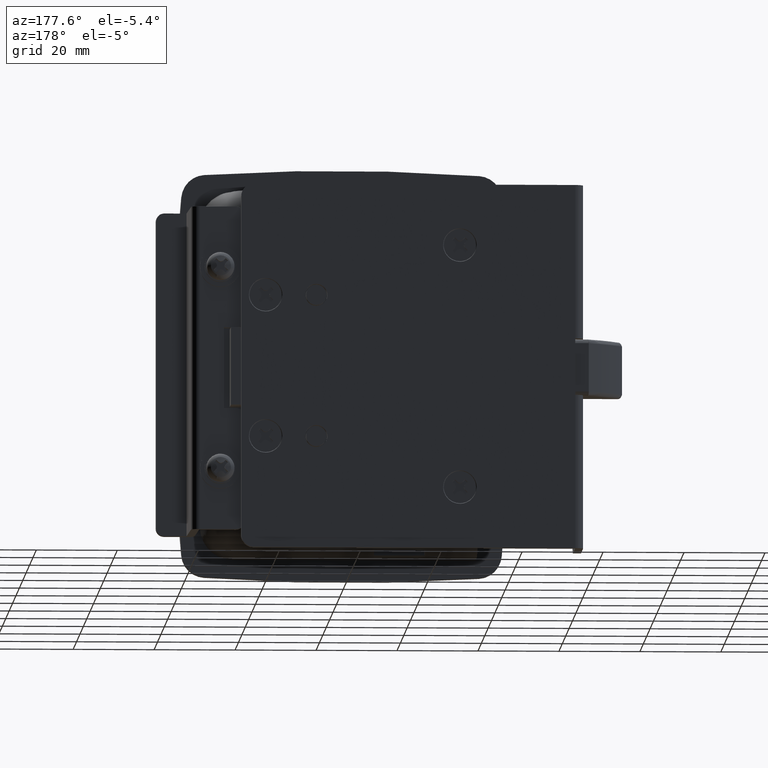
[diagram: clean part render]
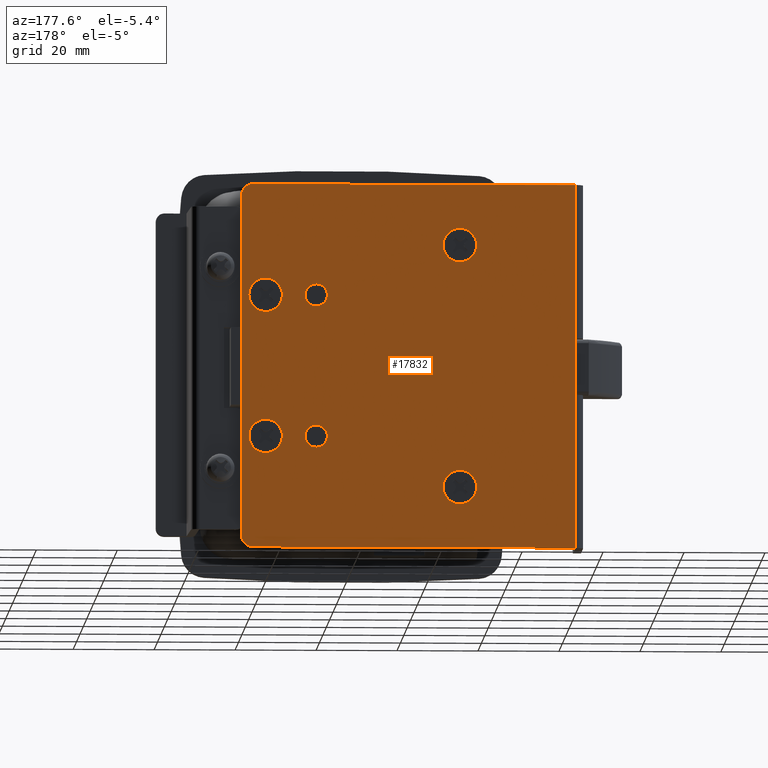
[diagram: same view with one face highlighted and labeled with its STEP entity id]
A machine part, auxiliary view. The second image highlights one B-rep face of the part: STEP entity #17832.
In plain terms, the highlighted face is a freeform B-spline surface patch.
Its self-contained STEP definition (entity closure, byte-faithful):
#11200=CARTESIAN_POINT('',(9.392974583329156,-4.510281E-017,-19.494479090709049));
#11201=VERTEX_POINT('',#11200);
#11207=CARTESIAN_POINT('',(7.499999999999770,0.0,-20.249700000000001));
#11208=VERTEX_POINT('',#11207);
#11209=CARTESIAN_POINT('',(7.499999999999770,0.0,-20.249700000000001));
#11210=CARTESIAN_POINT('',(7.869784483633461,-8.810641E-018,-20.250139553194071));
#11211=CARTESIAN_POINT('',(8.565351939496498,-2.538352E-017,-20.107052433896332));
#11212=CARTESIAN_POINT('',(9.156473079270201,-3.946783E-017,-19.719230965370262));
#11213=CARTESIAN_POINT('',(9.392974583329156,-4.510281E-017,-19.494479090709049));
#11214=B_SPLINE_CURVE_WITH_KNOTS('',3,(#11209,#11210,#11211,#11212,#11213),.UNSPECIFIED.,.F.,.U.,(4,1,4),(0.000000040620170,1.109186994255036,2.087898760092970),.UNSPECIFIED.);
#11215=EDGE_CURVE('',#11208,#11201,#11214,.T.);
#11217=CARTESIAN_POINT('',(4.750000000001024,0.0,-17.499702626245480));
#11218=VERTEX_POINT('',#11217);
#11219=CARTESIAN_POINT('',(4.750000000001024,0.0,-17.499702626245480));
#11220=CARTESIAN_POINT('',(4.749840308814628,0.0,-17.792202511121150));
#11221=CARTESIAN_POINT('',(4.826115870388144,0.0,-18.264554756545600));
#11222=CARTESIAN_POINT('',(5.091839589184843,0.0,-18.863918450261430));
#11223=CARTESIAN_POINT('',(5.404252137140133,0.0,-19.307509018719021));
#11224=CARTESIAN_POINT('',(5.797199955417036,0.0,-19.681627208899901));
#11225=CARTESIAN_POINT('',(6.293780677348477,0.0,-19.996121199077219));
#11226=CARTESIAN_POINT('',(6.870047558030239,0.0,-20.202307368956919));
#11227=CARTESIAN_POINT('',(7.297519497622908,0.0,-20.249729779746250));
#11228=CARTESIAN_POINT('',(7.499999999999770,0.0,-20.249700000000001));
#11229=B_SPLINE_CURVE_WITH_KNOTS('',3,(#11219,#11220,#11221,#11222,#11223,#11224,#11225,#11226,#11227,#11228),.UNSPECIFIED.,.F.,.U.,(4,1,1,1,1,1,1,4),(0.000000113092783,0.877452089203734,1.417435642961816,1.957436231764848,2.497349522907606,3.037350837190439,3.712340452867183,4.319796816690417),.UNSPECIFIED.);
#11230=EDGE_CURVE('',#11218,#11208,#11229,.T.);
#11232=CARTESIAN_POINT('',(7.499999999999770,0.0,-14.749700000000001));
#11233=VERTEX_POINT('',#11232);
#11234=CARTESIAN_POINT('',(7.499999999999770,0.0,-14.749700000000001));
#11235=CARTESIAN_POINT('',(7.252507739443558,0.0,-14.749608774356259));
#11236=CARTESIAN_POINT('',(6.825087537254403,0.0,-14.807819613569270));
#11237=CARTESIAN_POINT('',(6.255582192764411,0.0,-15.027500102007210));
#11238=CARTESIAN_POINT('',(5.797203837909365,0.0,-15.317772017591150));
#11239=CARTESIAN_POINT('',(5.404246971284079,0.0,-15.691896545538080));
#11240=CARTESIAN_POINT('',(5.091846800947380,0.0,-16.135485948021330));
#11241=CARTESIAN_POINT('',(4.826099662373191,0.0,-16.734846764234351));
#11242=CARTESIAN_POINT('',(4.749853196530282,0.0,-17.207205472618210));
#11243=CARTESIAN_POINT('',(4.750000000001024,0.0,-17.499702626245480));
#11244=B_SPLINE_CURVE_WITH_KNOTS('',3,(#11234,#11235,#11236,#11237,#11238,#11239,#11240,#11241,#11242,#11243),.UNSPECIFIED.,.F.,.U.,(4,1,1,1,1,1,1,4),(0.000000109493592,0.742465361439292,1.282446639286052,1.822448440180291,2.362361951866955,2.902364037542900,3.442346801314677,4.319799777155029),.UNSPECIFIED.);
#11245=EDGE_CURVE('',#11233,#11218,#11244,.T.);
#11247=CARTESIAN_POINT('',(9.599778551580791,-4.259142E-017,-15.723909022636770));
#11248=VERTEX_POINT('',#11247);
#11249=CARTESIAN_POINT('',(9.599778551580791,-4.259142E-017,-15.723909022636770));
#11250=CARTESIAN_POINT('',(9.359015617795111,-3.770784E-017,-15.438489734509140));
#11251=CARTESIAN_POINT('',(8.898850717989642,-2.837397E-017,-15.078502119941749));
#11252=CARTESIAN_POINT('',(8.147040131553595,-1.312441E-017,-14.801700519386850));
#11253=CARTESIAN_POINT('',(7.723995231064071,-4.543468E-018,-14.749640205870341));
#11254=CARTESIAN_POINT('',(7.499999999999770,0.0,-14.749700000000001));
#11255=B_SPLINE_CURVE_WITH_KNOTS('',3,(#11249,#11250,#11251,#11252,#11253,#11254),.UNSPECIFIED.,.F.,.U.,(4,1,1,4),(0.000000027722394,1.119974770404051,1.717293634808477,2.389278164190027),.UNSPECIFIED.);
#11256=EDGE_CURVE('',#11248,#11233,#11255,.T.);
#11291=CARTESIAN_POINT('',(10.249999999998520,0.0,-17.499697373754518));
#11292=VERTEX_POINT('',#11291);
#11293=CARTESIAN_POINT('',(10.249999999998520,0.0,-17.499697373754518));
#11294=CARTESIAN_POINT('',(10.250184297847850,-7.235254E-018,-17.198033727909650));
#11295=CARTESIAN_POINT('',(10.143017513796179,-2.266602E-017,-16.554670073767280));
#11296=CARTESIAN_POINT('',(9.820785417806386,-3.633477E-017,-15.984771107620659));
#11297=CARTESIAN_POINT('',(9.599778551580791,-4.259142E-017,-15.723909022636770));
#11298=B_SPLINE_CURVE_WITH_KNOTS('',3,(#11293,#11294,#11295,#11296,#11297),.UNSPECIFIED.,.F.,.U.,(4,1,4),(0.000000039391632,0.904944000214316,1.930521678923207),.UNSPECIFIED.);
#11299=EDGE_CURVE('',#11292,#11248,#11298,.T.);
#11301=CARTESIAN_POINT('',(9.392974583329156,-4.510281E-017,-19.494479090709049));
#11302=CARTESIAN_POINT('',(9.527899907188989,-4.220853E-017,-19.366472406523741));
#11303=CARTESIAN_POINT('',(9.786860354322078,-3.539704E-017,-19.065217721823871));
#11304=CARTESIAN_POINT('',(10.142385335530831,-2.049584E-017,-18.406175780363139));
#11305=CARTESIAN_POINT('',(10.250342137978270,-7.886122E-018,-17.848480208356811));
#11306=CARTESIAN_POINT('',(10.249999999998520,0.0,-17.499697373754518));
#11307=B_SPLINE_CURVE_WITH_KNOTS('',3,(#11301,#11302,#11303,#11304,#11305,#11306),.UNSPECIFIED.,.F.,.U.,(4,1,1,4),(0.000000035289736,0.557975528520603,1.185692934268769,2.231902008421104),.UNSPECIFIED.);
#11308=EDGE_CURVE('',#11201,#11292,#11307,.T.);
#11399=CARTESIAN_POINT('',(9.392974583329153,-4.510281E-017,15.505220909290950));
#11400=VERTEX_POINT('',#11399);
#11406=CARTESIAN_POINT('',(7.499999999999770,0.0,14.750000000000000));
#11407=VERTEX_POINT('',#11406);
#11408=CARTESIAN_POINT('',(7.499999999999770,0.0,14.750000000000000));
#11409=CARTESIAN_POINT('',(7.739236443465797,-5.700148E-018,14.749948103786830));
#11410=CARTESIAN_POINT('',(8.239443805778494,-1.761830E-017,14.815632395446940));
#11411=CARTESIAN_POINT('',(8.886042264248976,-3.302443E-017,15.091547564242180));
#11412=CARTESIAN_POINT('',(9.251004003709690,-4.172016E-017,15.370477760575101));
#11413=CARTESIAN_POINT('',(9.392974583329153,-4.510281E-017,15.505220909290950));
#11414=B_SPLINE_CURVE_WITH_KNOTS('',3,(#11408,#11409,#11410,#11411,#11412,#11413),.UNSPECIFIED.,.F.,.U.,(4,1,1,4),(0.000000040620251,0.717723523926494,1.500676272994168,2.087898760092963),.UNSPECIFIED.);
#11415=EDGE_CURVE('',#11407,#11400,#11414,.T.);
#11417=CARTESIAN_POINT('',(4.750000000001024,0.0,17.499997373754521));
#11418=VERTEX_POINT('',#11417);
#11419=CARTESIAN_POINT('',(4.750000000001024,0.0,17.499997373754521));
#11420=CARTESIAN_POINT('',(4.749930178237457,0.0,17.252515404706710));
#11421=CARTESIAN_POINT('',(4.820267765792993,0.0,16.735049380443520));
#11422=CARTESIAN_POINT('',(5.087521138245050,0.0,16.132089253781249));
#11423=CARTESIAN_POINT('',(5.437021943246415,0.0,15.661026491316800));
#11424=CARTESIAN_POINT('',(5.797198716900428,0.0,15.318067474176800));
#11425=CARTESIAN_POINT('',(6.255582514612471,0.0,15.027797513455360));
#11426=CARTESIAN_POINT('',(6.825087929735559,0.0,14.808115014239970));
#11427=CARTESIAN_POINT('',(7.252508794566377,0.0,14.749914264545261));
#11428=CARTESIAN_POINT('',(7.499999999999770,0.0,14.750000000000000));
#11429=B_SPLINE_CURVE_WITH_KNOTS('',3,(#11419,#11420,#11421,#11422,#11423,#11424,#11425,#11426,#11427,#11428),.UNSPECIFIED.,.F.,.U.,(4,1,1,1,1,1,1,4),(0.000000113093261,0.742464856165647,1.552442613504657,1.957436231764931,2.497349522907492,3.037350837190349,3.577333230882370,4.319796816690414),.UNSPECIFIED.);
#11430=EDGE_CURVE('',#11418,#11407,#11429,.T.);
#11432=CARTESIAN_POINT('',(7.499999999999770,0.0,20.250000000000000));
#11433=VERTEX_POINT('',#11432);
#11434=CARTESIAN_POINT('',(7.499999999999770,0.0,20.250000000000000));
#11435=CARTESIAN_POINT('',(7.252510830187495,0.0,20.250082299372689));
#11436=CARTESIAN_POINT('',(6.825086452760447,0.0,20.191878764985599));
#11437=CARTESIAN_POINT('',(6.171196088953281,0.0,19.939719382866109));
#11438=CARTESIAN_POINT('',(5.576094129250574,0.0,19.520717108103359));
#11439=CARTESIAN_POINT('',(5.100431223668873,0.0,18.911053250298160));
#11440=CARTESIAN_POINT('',(4.814202725288848,0.0,18.219909043232661));
#11441=CARTESIAN_POINT('',(4.749923556550121,0.0,17.747487010666841));
#11442=CARTESIAN_POINT('',(4.750000000001024,0.0,17.499997373754521));
#11443=B_SPLINE_CURVE_WITH_KNOTS('',3,(#11434,#11435,#11436,#11437,#11438,#11439,#11440,#11441,#11442),.UNSPECIFIED.,.F.,.U.,(4,1,1,1,1,1,4),(0.000000109494477,0.742465361439945,1.282446639286572,2.092415262397591,2.902364037542983,3.577335683763985,4.319799777155025),.UNSPECIFIED.);
#11444=EDGE_CURVE('',#11433,#11418,#11443,.T.);
#11446=CARTESIAN_POINT('',(9.599778551580791,-4.259142E-017,19.275790977363229));
#11447=VERTEX_POINT('',#11446);
#11448=CARTESIAN_POINT('',(9.599778551580791,-4.259142E-017,19.275790977363229));
#11449=CARTESIAN_POINT('',(9.359014265587504,-3.770782E-017,19.561208118945881));
#11450=CARTESIAN_POINT('',(8.898851468571152,-2.837398E-017,19.921199266021269));
#11451=CARTESIAN_POINT('',(8.147039845993158,-1.312441E-017,20.197998870958020));
#11452=CARTESIAN_POINT('',(7.723995301460193,-4.543469E-018,20.250059944514220));
#11453=CARTESIAN_POINT('',(7.499999999999770,0.0,20.250000000000000));
#11454=B_SPLINE_CURVE_WITH_KNOTS('',3,(#11448,#11449,#11450,#11451,#11452,#11453),.UNSPECIFIED.,.F.,.U.,(4,1,1,4),(0.000000027723029,1.119974770404322,1.717293634808617,2.389278164190021),.UNSPECIFIED.);
#11455=EDGE_CURVE('',#11447,#11433,#11454,.T.);
#11491=CARTESIAN_POINT('',(10.249999999998520,0.0,17.500002626245490));
#11492=VERTEX_POINT('',#11491);
#11493=CARTESIAN_POINT('',(10.249999999998520,0.0,17.500002626245490));
#11494=CARTESIAN_POINT('',(10.250008443988751,-4.340728E-018,17.680983133175680));
#11495=CARTESIAN_POINT('',(10.208230438214731,-1.446968E-017,18.103295463235611));
#11496=CARTESIAN_POINT('',(9.998454900966197,-2.920180E-017,18.717529874212978));
#11497=CARTESIAN_POINT('',(9.742659015306428,-3.854115E-017,19.106920864383952));
#11498=CARTESIAN_POINT('',(9.599778551580791,-4.259142E-017,19.275790977363229));
#11499=B_SPLINE_CURVE_WITH_KNOTS('',3,(#11493,#11494,#11495,#11496,#11497,#11498),.UNSPECIFIED.,.F.,.U.,(4,1,1,4),(0.000000039392559,0.542961993420380,1.266902995087414,1.930521678923206),.UNSPECIFIED.);
#11500=EDGE_CURVE('',#11492,#11447,#11499,.T.);
#11502=CARTESIAN_POINT('',(9.392974583329153,-4.510281E-017,15.505220909290950));
#11503=CARTESIAN_POINT('',(9.578551447892155,-4.112400E-017,15.681193683714490));
#11504=CARTESIAN_POINT('',(9.856118513375986,-3.323022E-017,16.030315430398030));
#11505=CARTESIAN_POINT('',(10.168647226038001,-1.786973E-017,16.709670500860550));
#11506=CARTESIAN_POINT('',(10.250207534680101,-6.834303E-018,17.197739063883379));
#11507=CARTESIAN_POINT('',(10.249999999998520,0.0,17.500002626245490));
#11508=B_SPLINE_CURVE_WITH_KNOTS('',3,(#11502,#11503,#11504,#11505,#11506,#11507),.UNSPECIFIED.,.F.,.U.,(4,1,1,4),(0.000000035290395,0.767224892532765,1.325182038209559,2.231902008421107),.UNSPECIFIED.);
#11509=EDGE_CURVE('',#11400,#11492,#11508,.T.);
#11763=CARTESIAN_POINT('',(22.967953060948549,-0.000000269955368,-20.388059182981369));
#11764=VERTEX_POINT('',#11763);
#11770=CARTESIAN_POINT('',(20.0,0.0,-21.641121356237448));
#11771=VERTEX_POINT('',#11770);
#11772=CARTESIAN_POINT('',(20.0,0.0,-21.641121356237448));
#11773=CARTESIAN_POINT('',(20.275748928247349,-0.000000025081227,-21.641161170819959));
#11774=CARTESIAN_POINT('',(20.809997685420878,-0.000000073674758,-21.587558876312158));
#11775=CARTESIAN_POINT('',(21.555660560059170,-0.000000141497830,-21.362320564484900));
#11776=CARTESIAN_POINT('',(22.294354933929881,-0.000000208687071,-20.982975903536410));
#11777=CARTESIAN_POINT('',(22.739630674681109,-0.000000249187906,-20.622784865563379));
#11778=CARTESIAN_POINT('',(22.967953060948549,-0.000000269955368,-20.388059182981369));
#11779=B_SPLINE_CURVE_WITH_KNOTS('',3,(#11772,#11773,#11774,#11775,#11776,#11777,#11778),.UNSPECIFIED.,.F.,.U.,(4,1,1,1,4),(0.000000040513545,0.827242281585998,1.602805288742270,2.326614956856774,3.308969004811353),.UNSPECIFIED.);
#11780=EDGE_CURVE('',#11771,#11764,#11779,.T.);
#11782=CARTESIAN_POINT('',(15.858578643763121,0.0,-17.499702160440631));
#11783=VERTEX_POINT('',#11782);
#11784=CARTESIAN_POINT('',(15.858578643763121,0.0,-17.499702160440631));
#11785=CARTESIAN_POINT('',(15.858420529897430,0.0,-17.906301275096851));
#11786=CARTESIAN_POINT('',(15.969238931311450,0.0,-18.651596855378980));
#11787=CARTESIAN_POINT('',(16.405017050539040,0.0,-19.634733849404508));
#11788=CARTESIAN_POINT('',(16.936018113523119,0.0,-20.323712521710519));
#11789=CARTESIAN_POINT('',(17.572314436520831,0.0,-20.886336723839541));
#11790=CARTESIAN_POINT('',(18.233023587670601,0.0,-21.276883750833299));
#11791=CARTESIAN_POINT('',(19.085232744674830,0.0,-21.570013511343038));
#11792=CARTESIAN_POINT('',(19.661177397892320,0.0,-21.641215195500841));
#11793=CARTESIAN_POINT('',(20.0,0.0,-21.641121356237448));
#11794=B_SPLINE_CURVE_WITH_KNOTS('',3,(#11784,#11785,#11786,#11787,#11788,#11789,#11790,#11791,#11792,#11793),.UNSPECIFIED.,.F.,.U.,(4,1,1,1,1,1,1,4),(0.000000145926926,1.219746799115694,2.236239032416495,3.201904823580489,3.811714498769907,4.777378885371839,5.488921338872595,6.505369054613815),.UNSPECIFIED.);
#11795=EDGE_CURVE('',#11783,#11771,#11794,.T.);
#11797=CARTESIAN_POINT('',(20.0,0.0,-13.358278643762560));
#11798=VERTEX_POINT('',#11797);
#11799=CARTESIAN_POINT('',(20.0,0.0,-13.358278643762560));
#11800=CARTESIAN_POINT('',(19.593391924876961,0.0,-13.358102139176790));
#11801=CARTESIAN_POINT('',(18.983645928213100,0.0,-13.448851245786040));
#11802=CARTESIAN_POINT('',(18.111930999434499,0.0,-13.785107318107650));
#11803=CARTESIAN_POINT('',(17.475449380345790,0.0,-14.182688267578930));
#11804=CARTESIAN_POINT('',(16.881228249849190,0.0,-14.741591778902560));
#11805=CARTESIAN_POINT('',(16.394443075170152,0.0,-15.397847396744670));
#11806=CARTESIAN_POINT('',(15.973930237640319,0.0,-16.330869037460559));
#11807=CARTESIAN_POINT('',(15.858391817577550,0.0,-17.076161093586791));
#11808=CARTESIAN_POINT('',(15.858578643763121,0.0,-17.499702160440631));
#11809=B_SPLINE_CURVE_WITH_KNOTS('',3,(#11799,#11800,#11801,#11802,#11803,#11804,#11805,#11806,#11807,#11808),.UNSPECIFIED.,.F.,.U.,(4,1,1,1,1,1,1,4),(0.000000145182517,1.219747255192627,1.829638264334131,2.795298143410420,3.455944193798826,4.269133922865381,5.234795310629154,6.505371489949192),.UNSPECIFIED.);
#11810=EDGE_CURVE('',#11798,#11783,#11809,.T.);
#11812=CARTESIAN_POINT('',(23.053376703177999,0.000000269027393,-14.701795740858021));
#11813=VERTEX_POINT('',#11812);
#11814=CARTESIAN_POINT('',(23.053376703177999,0.000000269027393,-14.701795740858021));
#11815=CARTESIAN_POINT('',(22.787710319845552,0.000000245620017,-14.411604909844661));
#11816=CARTESIAN_POINT('',(22.326485884762981,0.000000204982383,-14.034007039530961));
#11817=CARTESIAN_POINT('',(21.544399265473690,0.000000136074172,-13.633953760383349));
#11818=CARTESIAN_POINT('',(20.822581971514730,0.000000072476181,-13.412304311445601));
#11819=CARTESIAN_POINT('',(20.268231989401400,0.000000023633426,-13.358251680443310));
#11820=CARTESIAN_POINT('',(20.0,0.0,-13.358278643762560));
#11821=B_SPLINE_CURVE_WITH_KNOTS('',3,(#11814,#11815,#11816,#11817,#11818,#11819,#11820),.UNSPECIFIED.,.F.,.U.,(4,1,1,1,4),(0.000000043105740,1.180230833090091,1.770320105185527,2.628692054644897,3.433392660436408),.UNSPECIFIED.);
#11822=EDGE_CURVE('',#11813,#11798,#11821,.T.);
#11903=CARTESIAN_POINT('',(24.141421356236879,0.0,-17.499697839559360));
#11904=VERTEX_POINT('',#11903);
#11905=CARTESIAN_POINT('',(24.141421356236879,0.0,-17.499697839559360));
#11906=CARTESIAN_POINT('',(24.141599706068220,0.000000040000404,-17.083690994361412));
#11907=CARTESIAN_POINT('',(24.027173163937231,0.000000112299240,-16.331778379916759));
#11908=CARTESIAN_POINT('',(23.603594698022050,0.000000202741128,-15.391176991203301));
#11909=CARTESIAN_POINT('',(23.237153806643079,0.000000249746863,-14.902314427145299));
#11910=CARTESIAN_POINT('',(23.053376703177999,0.000000269027393,-14.701795740858021));
#11911=B_SPLINE_CURVE_WITH_KNOTS('',3,(#11905,#11906,#11907,#11908,#11909,#11910),.UNSPECIFIED.,.F.,.U.,(4,1,1,4),(0.000000031558110,1.247999175678265,2.255982454266035,3.071976463091522),.UNSPECIFIED.);
#11912=EDGE_CURVE('',#11904,#11813,#11911,.T.);
#11914=CARTESIAN_POINT('',(22.967953060948549,-0.000000269955368,-20.388059182981369));
#11915=CARTESIAN_POINT('',(23.211828896854531,-0.000000246543162,-20.137562471949991));
#11916=CARTESIAN_POINT('',(23.665940277429211,-0.000000190145616,-19.534142282673940));
#11917=CARTESIAN_POINT('',(24.059147841806219,-0.000000096472194,-18.531892567934221));
#11918=CARTESIAN_POINT('',(24.141452161084061,-0.000000029562728,-17.816001315840872));
#11919=CARTESIAN_POINT('',(24.141421356236879,0.0,-17.499697839559360));
#11920=B_SPLINE_CURVE_WITH_KNOTS('',3,(#11914,#11915,#11916,#11917,#11918,#11919),.UNSPECIFIED.,.F.,.U.,(4,1,1,4),(0.000000034116307,1.048823931913584,2.247467250712377,3.196402828481758),.UNSPECIFIED.);
#11921=EDGE_CURVE('',#11764,#11904,#11920,.T.);
#12166=CARTESIAN_POINT('',(22.967953060948549,-0.000000269955368,14.611640817018630));
#12167=VERTEX_POINT('',#12166);
#12173=CARTESIAN_POINT('',(20.0,0.0,13.358578643762559));
#12174=VERTEX_POINT('',#12173);
#12175=CARTESIAN_POINT('',(20.0,0.0,13.358578643762559));
#12176=CARTESIAN_POINT('',(20.482621078104948,-0.000000043897645,13.358188648999700));
#12177=CARTESIAN_POINT('',(21.257872361782990,-0.000000114411983,13.495754189625350));
#12178=CARTESIAN_POINT('',(22.253887453487899,-0.000000205006280,13.983963500196509));
#12179=CARTESIAN_POINT('',(22.739624695460940,-0.000000249187361,14.376920655791951));
#12180=CARTESIAN_POINT('',(22.967953060948549,-0.000000269955368,14.611640817018630));
#12181=B_SPLINE_CURVE_WITH_KNOTS('',3,(#12175,#12176,#12177,#12178,#12179,#12180),.UNSPECIFIED.,.F.,.U.,(4,1,1,4),(0.000000040513516,1.447688306950024,2.326614956856977,3.308969004811327),.UNSPECIFIED.);
#12182=EDGE_CURVE('',#12174,#12167,#12181,.T.);
#12184=CARTESIAN_POINT('',(15.858578643763121,0.0,17.499997839559370));
#12185=VERTEX_POINT('',#12184);
#12186=CARTESIAN_POINT('',(15.858578643763121,0.0,17.499997839559370));
#12187=CARTESIAN_POINT('',(15.858564175396561,0.0,17.245892780528980));
#12188=CARTESIAN_POINT('',(15.911703186584161,0.0,16.669887152418561));
#12189=CARTESIAN_POINT('',(16.154164868189540,0.0,15.887921389154330));
#12190=CARTESIAN_POINT('',(16.572323955091822,0.0,15.128198391261570));
#12191=CARTESIAN_POINT('',(17.077106407443651,0.0,14.528274412625510));
#12192=CARTESIAN_POINT('',(17.754159818014880,0.0,13.986408493060610));
#12193=CARTESIAN_POINT('',(18.695774445074179,0.0,13.505068116506960));
#12194=CARTESIAN_POINT('',(19.508652586868450,0.0,13.358163674319250));
#12195=CARTESIAN_POINT('',(20.0,0.0,13.358578643762559));
#12196=B_SPLINE_CURVE_WITH_KNOTS('',3,(#12186,#12187,#12188,#12189,#12190,#12191,#12192,#12193,#12194,#12195),.UNSPECIFIED.,.F.,.U.,(4,1,1,1,1,1,1,4),(0.000000145931800,0.762326400216305,1.727989838208594,2.439527597924939,3.354308569338086,4.065847860102831,5.031500356815656,6.505369054613813),.UNSPECIFIED.);
#12197=EDGE_CURVE('',#12185,#12174,#12196,.T.);
#12199=CARTESIAN_POINT('',(20.0,0.0,21.641421356237451));
#12200=VERTEX_POINT('',#12199);
#12201=CARTESIAN_POINT('',(20.0,0.0,21.641421356237451));
#12202=CARTESIAN_POINT('',(19.508669846143881,0.0,21.641798358946041));
#12203=CARTESIAN_POINT('',(18.644917491326389,0.0,21.485824484015051));
#12204=CARTESIAN_POINT('',(17.619724510935750,0.0,20.937743149065799));
#12205=CARTESIAN_POINT('',(16.921766691001611,0.0,20.312815446832971));
#12206=CARTESIAN_POINT('',(16.435045625913840,0.0,19.656522381361100));
#12207=CARTESIAN_POINT('',(15.992867898962800,0.0,18.736455251496650));
#12208=CARTESIAN_POINT('',(15.858150975281450,0.0,17.991355226063931));
#12209=CARTESIAN_POINT('',(15.858578643763121,0.0,17.499997839559370));
#12210=B_SPLINE_CURVE_WITH_KNOTS('',3,(#12201,#12202,#12203,#12204,#12205,#12206,#12207,#12208,#12209),.UNSPECIFIED.,.F.,.U.,(4,1,1,1,1,1,4),(0.000000145185150,1.473872002445487,2.592012755392829,3.455944193800667,4.269133922866592,5.031502241225189,6.505371489949194),.UNSPECIFIED.);
#12211=EDGE_CURVE('',#12200,#12185,#12210,.T.);
#12213=CARTESIAN_POINT('',(23.053376703177999,0.000000269027391,20.297904259141969));
#12214=VERTEX_POINT('',#12213);
#12215=CARTESIAN_POINT('',(23.053376703177999,0.000000269027391,20.297904259141969));
#12216=CARTESIAN_POINT('',(22.835964605747961,0.000000249871612,20.535268269603652));
#12217=CARTESIAN_POINT('',(22.413524172676780,0.000000212651164,20.900024806188561));
#12218=CARTESIAN_POINT('',(21.756323375211249,0.000000154746414,21.269040385112000));
#12219=CARTESIAN_POINT('',(20.983432313343410,0.000000086648408,21.556665656063640));
#12220=CARTESIAN_POINT('',(20.393431169080170,0.000000034664495,21.641598040124681));
#12221=CARTESIAN_POINT('',(20.0,0.0,21.641421356237451));
#12222=B_SPLINE_CURVE_WITH_KNOTS('',3,(#12215,#12216,#12217,#12218,#12219,#12220,#12221),.UNSPECIFIED.,.F.,.U.,(4,1,1,1,4),(0.000000043105436,0.965644226200407,1.663072598404408,2.253161870426680,3.433392660436415),.UNSPECIFIED.);
#12223=EDGE_CURVE('',#12214,#12200,#12222,.T.);
#12305=CARTESIAN_POINT('',(24.141421356236879,0.0,17.500002160440630));
#12306=VERTEX_POINT('',#12305);
#12307=CARTESIAN_POINT('',(24.141421356236879,0.0,17.500002160440630));
#12308=CARTESIAN_POINT('',(24.141789336063489,0.000000047698241,17.996067018806581));
#12309=CARTESIAN_POINT('',(24.010527053637151,0.000000116899571,18.715765363574381));
#12310=CARTESIAN_POINT('',(23.572344312063709,0.000000206253377,19.645050626227981));
#12311=CARTESIAN_POINT('',(23.258800858489241,0.000000247480048,20.073810576798579));
#12312=CARTESIAN_POINT('',(23.053376703177999,0.000000269027391,20.297904259141969));
#12313=B_SPLINE_CURVE_WITH_KNOTS('',3,(#12307,#12308,#12309,#12310,#12311,#12312),.UNSPECIFIED.,.F.,.U.,(4,1,1,4),(0.000000031558918,1.488009856950903,2.159981801606440,3.071976463091522),.UNSPECIFIED.);
#12314=EDGE_CURVE('',#12306,#12214,#12313,.T.);
#12316=CARTESIAN_POINT('',(22.967953060948549,-0.000000269955368,14.611640817018630));
#12317=CARTESIAN_POINT('',(23.258381078412729,-0.000000242088877,14.909795725493289));
#12318=CARTESIAN_POINT('',(23.640194101341510,-0.000000192161320,15.443990878493301));
#12319=CARTESIAN_POINT('',(24.042673512026049,-0.000000099571303,16.434648814701450));
#12320=CARTESIAN_POINT('',(24.141630483239581,-0.000000038901676,17.083777525618618));
#12321=CARTESIAN_POINT('',(24.141421356236879,0.0,17.500002160440630));
#12322=B_SPLINE_CURVE_WITH_KNOTS('',3,(#12316,#12317,#12318,#12319,#12320,#12321),.UNSPECIFIED.,.F.,.U.,(4,1,1,4),(0.000000034114254,1.248597599306314,1.947805263328350,3.196402828481753),.UNSPECIFIED.);
#12323=EDGE_CURVE('',#12167,#12306,#12322,.T.);
#12569=CARTESIAN_POINT('',(-25.032046939051462,-0.000000269955369,-32.888059182981372));
#12570=VERTEX_POINT('',#12569);
#12576=CARTESIAN_POINT('',(-28.0,0.0,-34.141121356237441));
#12577=VERTEX_POINT('',#12576);
#12578=CARTESIAN_POINT('',(-28.0,0.0,-34.141121356237441));
#12579=CARTESIAN_POINT('',(-27.672543633429228,-0.000000029784367,-34.141198852166660));
#12580=CARTESIAN_POINT('',(-27.052164256539449,-0.000000086212060,-34.067134675772692));
#12581=CARTESIAN_POINT('',(-26.007628219881362,-0.000000181219665,-33.693860878454522));
#12582=CARTESIAN_POINT('',(-25.368370135057919,-0.000000239364503,-33.234188463933890));
#12583=CARTESIAN_POINT('',(-25.032046939051462,-0.000000269955369,-32.888059182981372));
#12584=B_SPLINE_CURVE_WITH_KNOTS('',3,(#12578,#12579,#12580,#12581,#12582,#12583),.UNSPECIFIED.,.F.,.U.,(4,1,1,4),(0.000000040512627,0.982354088547102,1.861280738478983,3.308969004811311),.UNSPECIFIED.);
#12585=EDGE_CURVE('',#12577,#12570,#12584,.T.);
#12587=CARTESIAN_POINT('',(-32.141421356236883,0.0,-29.999702160440631));
#12588=VERTEX_POINT('',#12587);
#12589=CARTESIAN_POINT('',(-32.141421356236883,0.0,-29.999702160440631));
#12590=CARTESIAN_POINT('',(-32.141505533137810,0.0,-30.338525966061560));
#12591=CARTESIAN_POINT('',(-32.055706309206272,0.0,-31.033067921642900));
#12592=CARTESIAN_POINT('',(-31.649946054832579,0.0,-32.066601307822673));
#12593=CARTESIAN_POINT('',(-30.986231893828830,0.0,-32.938833567459973));
#12594=CARTESIAN_POINT('',(-30.202539010318461,0.0,-33.542561061462997));
#12595=CARTESIAN_POINT('',(-29.236452854332700,0.0,-34.006826376728533));
#12596=CARTESIAN_POINT('',(-28.491357189236869,0.0,-34.141548668330273));
#12597=CARTESIAN_POINT('',(-28.0,0.0,-34.141121356237441));
#12598=B_SPLINE_CURVE_WITH_KNOTS('',3,(#12589,#12590,#12591,#12592,#12593,#12594,#12595,#12596,#12597),.UNSPECIFIED.,.F.,.U.,(4,1,1,1,1,1,4),(0.000000145933279,1.016459075532757,2.083757360862678,3.303463423418806,4.269132323199601,5.031500356815791,6.505369054613794),.UNSPECIFIED.);
#12599=EDGE_CURVE('',#12588,#12577,#12598,.T.);
#12601=CARTESIAN_POINT('',(-28.0,0.0,-25.858278643762560));
#12602=VERTEX_POINT('',#12601);
#12603=CARTESIAN_POINT('',(-28.0,0.0,-25.858278643762560));
#12604=CARTESIAN_POINT('',(-28.338816249279819,0.0,-25.858216864503639));
#12605=CARTESIAN_POINT('',(-29.067284810518860,0.0,-25.948093855593349));
#12606=CARTESIAN_POINT('',(-29.907201701181609,0.0,-26.289929759457479));
#12607=CARTESIAN_POINT('',(-30.612777645222319,0.0,-26.761521931655160));
#12608=CARTESIAN_POINT('',(-31.121514472846989,0.0,-27.239930044449679));
#12609=CARTESIAN_POINT('',(-31.579653350803319,0.0,-27.873855939096689));
#12610=CARTESIAN_POINT('',(-32.007240328600062,0.0,-28.763224209659221));
#12611=CARTESIAN_POINT('',(-32.141746342222859,0.0,-29.508362809857928));
#12612=CARTESIAN_POINT('',(-32.141421356236883,0.0,-29.999702160440631));
#12613=B_SPLINE_CURVE_WITH_KNOTS('',3,(#12603,#12604,#12605,#12606,#12607,#12608,#12609,#12610,#12611,#12612),.UNSPECIFIED.,.F.,.U.,(4,1,1,1,1,1,1,4),(0.000000145183129,1.016459455762046,2.185399188219862,2.693658444254912,3.557586888325575,4.269133922866166,5.031502241224917,6.505371489949188),.UNSPECIFIED.);
#12614=EDGE_CURVE('',#12602,#12588,#12613,.T.);
#12616=CARTESIAN_POINT('',(-24.946623296822011,0.000000269027392,-27.201795740858032));
#12617=VERTEX_POINT('',#12616);
#12618=CARTESIAN_POINT('',(-24.946623296822011,0.000000269027392,-27.201795740858032));
#12619=CARTESIAN_POINT('',(-25.151970162314381,0.000000250934659,-26.977638935304061));
#12620=CARTESIAN_POINT('',(-25.652913301375659,0.000000206797482,-26.539266751015710));
#12621=CARTESIAN_POINT('',(-26.676904438253601,0.000000116575511,-26.006958746372121));
#12622=CARTESIAN_POINT('',(-27.517144355455219,0.000000042543521,-25.857929753463040));
#12623=CARTESIAN_POINT('',(-28.0,0.0,-25.858278643762560));
#12624=B_SPLINE_CURVE_WITH_KNOTS('',3,(#12618,#12619,#12620,#12621,#12622,#12623),.UNSPECIFIED.,.F.,.U.,(4,1,1,4),(0.000000043105806,0.911995745978644,1.984928742793231,3.433392660436429),.UNSPECIFIED.);
#12625=EDGE_CURVE('',#12617,#12602,#12624,.T.);
#12708=CARTESIAN_POINT('',(-23.858578643763131,0.0,-29.999697839559360));
#12709=VERTEX_POINT('',#12708);
#12710=CARTESIAN_POINT('',(-23.858578643763131,0.0,-29.999697839559360));
#12711=CARTESIAN_POINT('',(-23.858386001142652,0.000000040001808,-29.583676388303068));
#12712=CARTESIAN_POINT('',(-23.965577018619019,0.000000107680584,-28.879812701990101));
#12713=CARTESIAN_POINT('',(-24.371916173703749,0.000000198642598,-27.933801952043989));
#12714=CARTESIAN_POINT('',(-24.730390535070239,0.000000246345606,-27.437687701816120));
#12715=CARTESIAN_POINT('',(-24.946623296822011,0.000000269027392,-27.201795740858032));
#12716=B_SPLINE_CURVE_WITH_KNOTS('',3,(#12710,#12711,#12712,#12713,#12714,#12715),.UNSPECIFIED.,.F.,.U.,(4,1,1,4),(0.000000031558911,1.247999175678504,2.111978598464097,3.071976463091513),.UNSPECIFIED.);
#12717=EDGE_CURVE('',#12709,#12617,#12716,.T.);
#12719=CARTESIAN_POINT('',(-25.032046939051462,-0.000000269955369,-32.888059182981372));
#12720=CARTESIAN_POINT('',(-24.764887329387850,-0.000000244316623,-32.613739825786233));
#12721=CARTESIAN_POINT('',(-24.377242308809969,-0.000000194911805,-32.085137662728712));
#12722=CARTESIAN_POINT('',(-23.962403930473990,-0.000000102682837,-31.098342742016161));
#12723=CARTESIAN_POINT('',(-23.858359519180489,-0.000000038901888,-30.415924733456020));
#12724=CARTESIAN_POINT('',(-23.858578643763131,0.0,-29.999697839559360));
#12725=B_SPLINE_CURVE_WITH_KNOTS('',3,(#12719,#12720,#12721,#12722,#12723,#12724),.UNSPECIFIED.,.F.,.U.,(4,1,1,4),(0.000000034118066,1.148709832041248,1.947805263329762,3.196402828481754),.UNSPECIFIED.);
#12726=EDGE_CURVE('',#12570,#12709,#12725,.T.);
#12972=CARTESIAN_POINT('',(-25.032046939051462,-0.000000269955367,27.111640817018628));
#12973=VERTEX_POINT('',#12972);
#12979=CARTESIAN_POINT('',(-28.0,0.0,25.858578643762559));
#12980=VERTEX_POINT('',#12979);
#12981=CARTESIAN_POINT('',(-28.0,0.0,25.858578643762559));
#12982=CARTESIAN_POINT('',(-27.517366528208210,-0.000000043898772,25.858177805592110));
#12983=CARTESIAN_POINT('',(-26.845528138659819,-0.000000105007009,25.977449244109529));
#12984=CARTESIAN_POINT('',(-25.835195849800598,-0.000000196903551,26.426497373788379));
#12985=CARTESIAN_POINT('',(-25.332390888953402,-0.000000242637057,26.802673576572360));
#12986=CARTESIAN_POINT('',(-25.032046939051462,-0.000000269955367,27.111640817018628));
#12987=B_SPLINE_CURVE_WITH_KNOTS('',3,(#12981,#12982,#12983,#12984,#12985,#12986),.UNSPECIFIED.,.F.,.U.,(4,1,1,4),(0.000000040514157,1.447688306950419,2.016400020156697,3.308969004811304),.UNSPECIFIED.);
#12988=EDGE_CURVE('',#12980,#12973,#12987,.T.);
#12990=CARTESIAN_POINT('',(-32.141421356236869,0.0,29.999997839559370));
#12991=VERTEX_POINT('',#12990);
#12992=CARTESIAN_POINT('',(-32.141421356236869,0.0,29.999997839559370));
#12993=CARTESIAN_POINT('',(-32.141438737396747,0.0,29.745890694818730));
#12994=CARTESIAN_POINT('',(-32.091383570611100,0.0,29.203787502205259));
#12995=CARTESIAN_POINT('',(-31.834727648133921,0.0,28.338248958580710));
#12996=CARTESIAN_POINT('',(-31.366614768822711,0.0,27.523669354958059));
#12997=CARTESIAN_POINT('',(-30.759763163708701,0.0,26.878488727646399));
#12998=CARTESIAN_POINT('',(-30.125846139734559,0.0,26.420343531648712));
#12999=CARTESIAN_POINT('',(-29.236476864533820,0.0,25.992765978022629));
#13000=CARTESIAN_POINT('',(-28.491339762492551,0.0,25.858249129090112));
#13001=CARTESIAN_POINT('',(-28.0,0.0,25.858578643762559));
#13002=B_SPLINE_CURVE_WITH_KNOTS('',3,(#12992,#12993,#12994,#12995,#12996,#12997,#12998,#12999,#13000,#13001),.UNSPECIFIED.,.F.,.U.,(4,1,1,1,1,1,1,4),(0.000000145939131,0.762326400223522,1.626342659007212,2.693657435997753,3.557585555218900,4.269132323202808,5.031500356817329,6.505369054613750),.UNSPECIFIED.);
#13003=EDGE_CURVE('',#12991,#12980,#13002,.T.);
#13005=CARTESIAN_POINT('',(-28.0,0.0,34.141421356237437));
#13006=VERTEX_POINT('',#13005);
#13007=CARTESIAN_POINT('',(-28.0,0.0,34.141421356237437));
#13008=CARTESIAN_POINT('',(-28.338816183310328,0.0,34.141483166360807));
#13009=CARTESIAN_POINT('',(-29.067284700754008,0.0,34.051606055734673));
#13010=CARTESIAN_POINT('',(-29.907202264296210,0.0,33.709770423819627));
#13011=CARTESIAN_POINT('',(-30.612775907187441,0.0,33.238177152344100));
#13012=CARTESIAN_POINT('',(-31.121513875183069,0.0,32.759770537055580));
#13013=CARTESIAN_POINT('',(-31.619558541778829,0.0,32.070737953625780));
#13014=CARTESIAN_POINT('',(-32.026053237379450,0.0,31.168833858893372));
#13015=CARTESIAN_POINT('',(-32.141633068349307,0.0,30.423540979208990));
#13016=CARTESIAN_POINT('',(-32.141421356236869,0.0,29.999997839559370));
#13017=B_SPLINE_CURVE_WITH_KNOTS('',3,(#13007,#13008,#13009,#13010,#13011,#13012,#13013,#13014,#13015,#13016),.UNSPECIFIED.,.F.,.U.,(4,1,1,1,1,1,1,4),(0.000000145188516,1.016459455765419,2.185399188221218,2.693658444255524,3.557586888325551,4.269133922866180,5.234795310629487,6.505371489949179),.UNSPECIFIED.);
#13018=EDGE_CURVE('',#13006,#12991,#13017,.T.);
#13020=CARTESIAN_POINT('',(-24.946623296822011,0.000000269027390,32.797904259141973));
#13021=VERTEX_POINT('',#13020);
#13022=CARTESIAN_POINT('',(-24.946623296822011,0.000000269027390,32.797904259141973));
#13023=CARTESIAN_POINT('',(-25.212308138406890,0.000000245618388,33.088072502987579));
#13024=CARTESIAN_POINT('',(-25.687475567576460,0.000000203752262,33.477163561510778));
#13025=CARTESIAN_POINT('',(-26.472537297964919,0.000000134581921,33.872296649004717));
#13026=CARTESIAN_POINT('',(-27.195307347310241,0.000000070899985,34.089131580791658));
#13027=CARTESIAN_POINT('',(-27.731767062150130,0.000000023633509,34.141449198884210));
#13028=CARTESIAN_POINT('',(-28.0,0.0,34.141421356237437));
#13029=B_SPLINE_CURVE_WITH_KNOTS('',3,(#13022,#13023,#13024,#13025,#13026,#13027,#13028),.UNSPECIFIED.,.F.,.U.,(4,1,1,1,4),(0.000000043109617,1.180230833092353,1.823976275401399,2.628692054645636,3.433392660436368),.UNSPECIFIED.);
#13030=EDGE_CURVE('',#13021,#13006,#13029,.T.);
#13111=CARTESIAN_POINT('',(-23.858578643763121,0.0,30.000002160440630));
#13112=VERTEX_POINT('',#13111);
#13113=CARTESIAN_POINT('',(-23.858578643763121,0.0,30.000002160440630));
#13114=CARTESIAN_POINT('',(-23.858153651623290,0.000000047698630,30.496071074143671));
#13115=CARTESIAN_POINT('',(-23.995360182814242,0.000000119975409,31.247754288836031));
#13116=CARTESIAN_POINT('',(-24.444676930071878,0.000000208924450,32.172829972231163));
#13117=CARTESIAN_POINT('',(-24.762835912097160,0.000000249747317,32.597390319590652));
#13118=CARTESIAN_POINT('',(-24.946623296822011,0.000000269027390,32.797904259141973));
#13119=B_SPLINE_CURVE_WITH_KNOTS('',3,(#13113,#13114,#13115,#13116,#13117,#13118),.UNSPECIFIED.,.F.,.U.,(4,1,1,4),(0.000000031555313,1.488009856948907,2.255982454265311,3.071976463091527),.UNSPECIFIED.);
#13120=EDGE_CURVE('',#13112,#13021,#13119,.T.);
#13122=CARTESIAN_POINT('',(-25.032046939051462,-0.000000269955367,27.111640817018628));
#13123=CARTESIAN_POINT('',(-24.741604676825411,-0.000000242090232,27.409781218594119));
#13124=CARTESIAN_POINT('',(-24.340226981092108,-0.000000189599938,27.971396139813301));
#13125=CARTESIAN_POINT('',(-23.949276522506722,-0.000000096463449,28.967900990927639));
#13126=CARTESIAN_POINT('',(-23.858455682875189,-0.000000035788281,29.617088994455070));
#13127=CARTESIAN_POINT('',(-23.858578643763121,0.0,30.000002160440630));
#13128=B_SPLINE_CURVE_WITH_KNOTS('',3,(#13122,#13123,#13124,#13125,#13126,#13127),.UNSPECIFIED.,.F.,.U.,(4,1,1,4),(0.000000034115907,1.248597599307729,2.047693030501741,3.196402828481726),.UNSPECIFIED.);
#13129=EDGE_CURVE('',#12973,#13112,#13128,.T.);
#14323=CARTESIAN_POINT('',(-56.500000000000000,0.0,7.0));
#14324=VERTEX_POINT('',#14323);
#14330=CARTESIAN_POINT('',(-56.500000000000000,0.0,-6.999699999999921));
#14331=VERTEX_POINT('',#14330);
#14332=CARTESIAN_POINT('',(-56.500000000000000,0.0,7.0));
#14333=CARTESIAN_POINT('',(-56.500000000000000,0.0,-6.999699999999921));
#14334=QUASI_UNIFORM_CURVE('',1,(#14332,#14333),.UNSPECIFIED.,.F.,.U.);
#14335=EDGE_CURVE('',#14324,#14331,#14334,.T.);
#17294=CARTESIAN_POINT('',(23.001000000000001,0.0,-44.999699999999997));
#17295=VERTEX_POINT('',#17294);
#17301=CARTESIAN_POINT('',(26.001000000000001,0.0,-41.999699999999997));
#17302=VERTEX_POINT('',#17301);
#17303=CARTESIAN_POINT('',(26.001000000000001,0.0,-41.999699999999997));
#17304=CARTESIAN_POINT('',(26.001266547114000,0.0,-42.343351606561818));
#17305=CARTESIAN_POINT('',(25.907154430608699,0.0,-42.883130646480147));
#17306=CARTESIAN_POINT('',(25.611851895247622,0.0,-43.507358572662781));
#17307=CARTESIAN_POINT('',(25.300087213996971,0.0,-43.950009913538722));
#17308=CARTESIAN_POINT('',(24.846740573485150,0.0,-44.403499466448210));
#17309=CARTESIAN_POINT('',(24.080690631495361,0.0,-44.862794241558319));
#17310=CARTESIAN_POINT('',(23.393745891204791,0.0,-45.000098228011247));
#17311=CARTESIAN_POINT('',(23.001000000000001,0.0,-44.999699999999997));
#17312=B_SPLINE_CURVE_WITH_KNOTS('',3,(#17303,#17304,#17305,#17306,#17307,#17308,#17309,#17310,#17311),.UNSPECIFIED.,.F.,.U.,(4,1,1,1,1,1,4),(0.000000044342384,1.030859981431080,1.619926201192006,2.061727439912523,2.650777160348121,3.534380469227334,4.712507233004089),.UNSPECIFIED.);
#17313=EDGE_CURVE('',#17302,#17295,#17312,.T.);
#17353=CARTESIAN_POINT('',(26.001000000000001,0.0,42.0));
#17354=VERTEX_POINT('',#17353);
#17360=CARTESIAN_POINT('',(23.001000000000001,0.0,45.0));
#17361=VERTEX_POINT('',#17360);
#17362=CARTESIAN_POINT('',(23.001000000000001,0.0,45.0));
#17363=CARTESIAN_POINT('',(23.197338050630009,0.0,45.000014956419257));
#17364=CARTESIAN_POINT('',(23.639141094562170,0.0,44.956522060736077));
#17365=CARTESIAN_POINT('',(24.202665603039922,0.0,44.770357952765153));
#17366=CARTESIAN_POINT('',(24.716577795825192,0.0,44.479183219751633));
#17367=CARTESIAN_POINT('',(25.135978550221100,0.0,44.134993292662990));
#17368=CARTESIAN_POINT('',(25.574182767661910,0.0,43.601257678886462));
#17369=CARTESIAN_POINT('',(25.913585083841578,0.0,42.883531689766521));
#17370=CARTESIAN_POINT('',(26.001106739018390,0.0,42.294528393133113));
#17371=CARTESIAN_POINT('',(26.001000000000001,0.0,42.0));
#17372=B_SPLINE_CURVE_WITH_KNOTS('',3,(#17362,#17363,#17364,#17365,#17366,#17367,#17368,#17369,#17370,#17371),.UNSPECIFIED.,.F.,.U.,(4,1,1,1,1,1,1,4),(0.000000044345501,0.589039068011020,1.325396087082199,1.767192921360716,2.356253705291652,2.945302628262872,3.828923318618326,4.712507233003995),.UNSPECIFIED.);
#17373=EDGE_CURVE('',#17361,#17354,#17372,.T.);
#17396=CARTESIAN_POINT('',(-56.500000000000000,0.0,45.0));
#17397=VERTEX_POINT('',#17396);
#17398=CARTESIAN_POINT('',(23.001000000000001,0.0,45.0));
#17399=CARTESIAN_POINT('',(-56.500000000000000,0.0,45.0));
#17400=QUASI_UNIFORM_CURVE('',1,(#17398,#17399),.UNSPECIFIED.,.F.,.U.);
#17401=EDGE_CURVE('',#17361,#17397,#17400,.T.);
#17436=CARTESIAN_POINT('',(-56.500000000000000,0.0,-44.999699999999997));
#17437=VERTEX_POINT('',#17436);
#17438=CARTESIAN_POINT('',(23.001000000000001,0.0,-44.999699999999997));
#17439=CARTESIAN_POINT('',(-56.500000000000000,0.0,-44.999699999999997));
#17440=QUASI_UNIFORM_CURVE('',1,(#17438,#17439),.UNSPECIFIED.,.F.,.U.);
#17441=EDGE_CURVE('',#17295,#17437,#17440,.T.);
#17631=CARTESIAN_POINT('',(-56.500000000000000,0.0,-44.999699999999997));
#17632=CARTESIAN_POINT('',(-56.500000000000000,0.0,-6.999699999999921));
#17633=QUASI_UNIFORM_CURVE('',1,(#17631,#17632),.UNSPECIFIED.,.F.,.U.);
#17634=EDGE_CURVE('',#17437,#14331,#17633,.T.);
#17646=CARTESIAN_POINT('',(26.001000000000001,0.0,-41.999699999999997));
#17647=CARTESIAN_POINT('',(26.001000000000001,0.0,42.0));
#17648=QUASI_UNIFORM_CURVE('',1,(#17646,#17647),.UNSPECIFIED.,.F.,.U.);
#17649=EDGE_CURVE('',#17302,#17354,#17648,.T.);
#17765=CARTESIAN_POINT('',(-60.620924790097057,0.0,-49.495183995710327));
#17766=CARTESIAN_POINT('',(-60.620924790097057,0.0,49.495487214350419));
#17767=CARTESIAN_POINT('',(30.121927002946311,0.0,-49.495183995710327));
#17768=CARTESIAN_POINT('',(30.121927002946311,0.0,49.495487214350412));
#17769=B_SPLINE_SURFACE_WITH_KNOTS('',1,1,((#17765,#17767),(#17766,#17768)),.UNSPECIFIED.,.F.,.F.,.U.,(2,2),(2,2),(0.0,98.990671210060754),(0.0,90.742851793043371),.UNSPECIFIED.);
#17770=ORIENTED_EDGE('',*,*,#17401,.F.);
#17771=ORIENTED_EDGE('',*,*,#17373,.T.);
#17772=ORIENTED_EDGE('',*,*,#17649,.F.);
#17773=ORIENTED_EDGE('',*,*,#17313,.T.);
#17774=ORIENTED_EDGE('',*,*,#17441,.T.);
#17775=ORIENTED_EDGE('',*,*,#17634,.T.);
#17776=ORIENTED_EDGE('',*,*,#14335,.F.);
#17777=CARTESIAN_POINT('',(-56.500000000000000,0.0,7.0));
#17778=CARTESIAN_POINT('',(-56.500000000000000,0.0,45.0));
#17779=QUASI_UNIFORM_CURVE('',1,(#17777,#17778),.UNSPECIFIED.,.F.,.U.);
#17780=EDGE_CURVE('',#14324,#17397,#17779,.T.);
#17781=ORIENTED_EDGE('',*,*,#17780,.T.);
#17782=EDGE_LOOP('',(#17770,#17771,#17772,#17773,#17774,#17775,#17776,#17781));
#17783=FACE_OUTER_BOUND('',#17782,.T.);
#17784=ORIENTED_EDGE('',*,*,#11444,.T.);
#17785=ORIENTED_EDGE('',*,*,#11430,.T.);
#17786=ORIENTED_EDGE('',*,*,#11415,.T.);
#17787=ORIENTED_EDGE('',*,*,#11509,.T.);
#17788=ORIENTED_EDGE('',*,*,#11500,.T.);
#17789=ORIENTED_EDGE('',*,*,#11455,.T.);
#17790=EDGE_LOOP('',(#17784,#17785,#17786,#17787,#17788,#17789));
#17791=FACE_BOUND('',#17790,.T.);
#17792=ORIENTED_EDGE('',*,*,#11810,.T.);
#17793=ORIENTED_EDGE('',*,*,#11795,.T.);
#17794=ORIENTED_EDGE('',*,*,#11780,.T.);
#17795=ORIENTED_EDGE('',*,*,#11921,.T.);
#17796=ORIENTED_EDGE('',*,*,#11912,.T.);
#17797=ORIENTED_EDGE('',*,*,#11822,.T.);
#17798=EDGE_LOOP('',(#17792,#17793,#17794,#17795,#17796,#17797));
#17799=FACE_BOUND('',#17798,.T.);
#17800=ORIENTED_EDGE('',*,*,#12614,.T.);
#17801=ORIENTED_EDGE('',*,*,#12599,.T.);
#17802=ORIENTED_EDGE('',*,*,#12585,.T.);
#17803=ORIENTED_EDGE('',*,*,#12726,.T.);
#17804=ORIENTED_EDGE('',*,*,#12717,.T.);
#17805=ORIENTED_EDGE('',*,*,#12625,.T.);
#17806=EDGE_LOOP('',(#17800,#17801,#17802,#17803,#17804,#17805));
#17807=FACE_BOUND('',#17806,.T.);
#17808=ORIENTED_EDGE('',*,*,#11245,.T.);
#17809=ORIENTED_EDGE('',*,*,#11230,.T.);
#17810=ORIENTED_EDGE('',*,*,#11215,.T.);
#17811=ORIENTED_EDGE('',*,*,#11308,.T.);
#17812=ORIENTED_EDGE('',*,*,#11299,.T.);
#17813=ORIENTED_EDGE('',*,*,#11256,.T.);
#17814=EDGE_LOOP('',(#17808,#17809,#17810,#17811,#17812,#17813));
#17815=FACE_BOUND('',#17814,.T.);
#17816=ORIENTED_EDGE('',*,*,#13018,.T.);
#17817=ORIENTED_EDGE('',*,*,#13003,.T.);
#17818=ORIENTED_EDGE('',*,*,#12988,.T.);
#17819=ORIENTED_EDGE('',*,*,#13129,.T.);
#17820=ORIENTED_EDGE('',*,*,#13120,.T.);
#17821=ORIENTED_EDGE('',*,*,#13030,.T.);
#17822=EDGE_LOOP('',(#17816,#17817,#17818,#17819,#17820,#17821));
#17823=FACE_BOUND('',#17822,.T.);
#17824=ORIENTED_EDGE('',*,*,#12211,.T.);
#17825=ORIENTED_EDGE('',*,*,#12197,.T.);
#17826=ORIENTED_EDGE('',*,*,#12182,.T.);
#17827=ORIENTED_EDGE('',*,*,#12323,.T.);
#17828=ORIENTED_EDGE('',*,*,#12314,.T.);
#17829=ORIENTED_EDGE('',*,*,#12223,.T.);
#17830=EDGE_LOOP('',(#17824,#17825,#17826,#17827,#17828,#17829));
#17831=FACE_BOUND('',#17830,.T.);
#17832=ADVANCED_FACE('',(#17783,#17791,#17799,#17807,#17815,#17823,#17831),#17769,.T.);